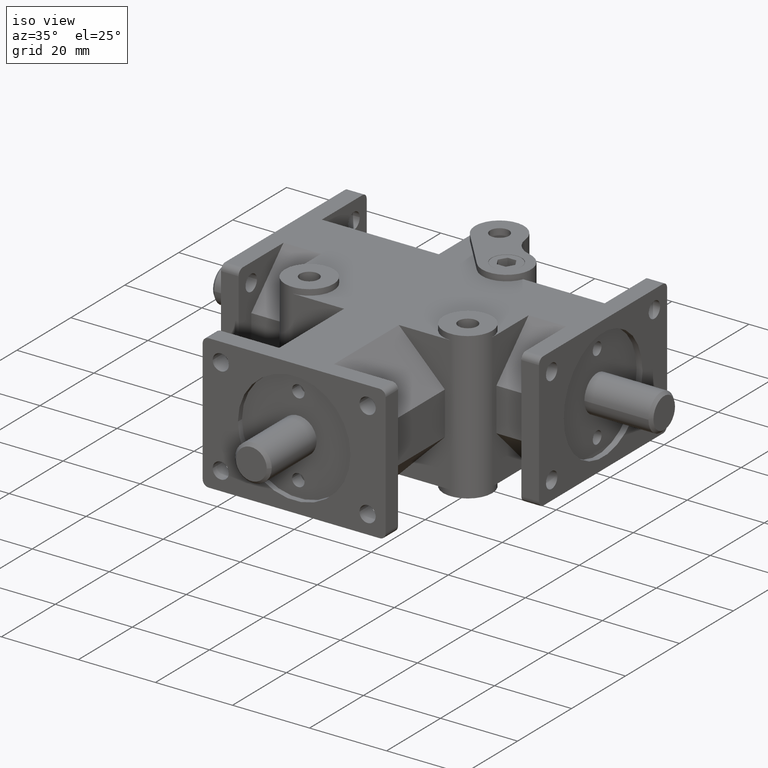
[diagram: clean part render]
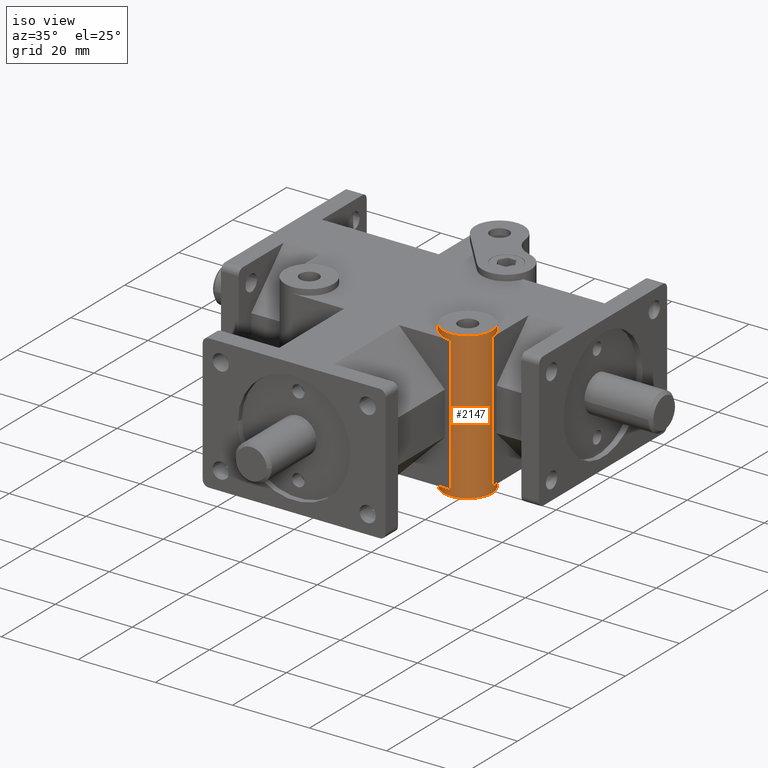
[diagram: same view with one face highlighted and labeled with its STEP entity id]
A machine part, iso view. The second image highlights one B-rep face of the part: STEP entity #2147.
In plain terms, the highlighted cylindrical surface (bore or boss wall) has radius 6.35 mm, axis along (0, 0, 1).
Its self-contained STEP definition (entity closure, byte-faithful):
#209=FACE_OUTER_BOUND('',#359,.T.);
#359=EDGE_LOOP('',(#1815,#1816,#1817,#1818,#1819,#1820,#1821,#1822,#1823,
#1824,#1825,#1826));
#473=CIRCLE('',#2297,0.25);
#474=CIRCLE('',#2298,0.25);
#481=CIRCLE('',#2307,0.25);
#482=CIRCLE('',#2308,0.25);
#503=CIRCLE('',#2368,0.25);
#504=CIRCLE('',#2369,0.25);
#679=LINE('',#3580,#874);
#680=LINE('',#3584,#875);
#681=LINE('',#3586,#876);
#682=LINE('',#3588,#877);
#874=VECTOR('',#2915,1.);
#875=VECTOR('',#2920,0.25);
#876=VECTOR('',#2921,0.25);
#877=VECTOR('',#2924,1.);
#1008=VERTEX_POINT('',#3330);
#1009=VERTEX_POINT('',#3332);
#1010=VERTEX_POINT('',#3334);
#1037=VERTEX_POINT('',#3403);
#1038=VERTEX_POINT('',#3405);
#1039=VERTEX_POINT('',#3407);
#1088=VERTEX_POINT('',#3582);
#1089=VERTEX_POINT('',#3585);
#1228=EDGE_CURVE('',#1008,#1009,#473,.T.);
#1229=EDGE_CURVE('',#1009,#1010,#474,.T.);
#1270=EDGE_CURVE('',#1037,#1038,#481,.T.);
#1271=EDGE_CURVE('',#1038,#1039,#482,.T.);
#1357=EDGE_CURVE('',#1039,#1008,#679,.T.);
#1358=EDGE_CURVE('',#1088,#1088,#503,.T.);
#1359=EDGE_CURVE('',#1088,#1009,#680,.T.);
#1360=EDGE_CURVE('',#1038,#1089,#681,.T.);
#1361=EDGE_CURVE('',#1089,#1089,#504,.T.);
#1362=EDGE_CURVE('',#1037,#1010,#682,.T.);
#1815=ORIENTED_EDGE('',*,*,#1358,.T.);
#1816=ORIENTED_EDGE('',*,*,#1359,.T.);
#1817=ORIENTED_EDGE('',*,*,#1228,.F.);
#1818=ORIENTED_EDGE('',*,*,#1357,.F.);
#1819=ORIENTED_EDGE('',*,*,#1271,.F.);
#1820=ORIENTED_EDGE('',*,*,#1360,.T.);
#1821=ORIENTED_EDGE('',*,*,#1361,.T.);
#1822=ORIENTED_EDGE('',*,*,#1360,.F.);
#1823=ORIENTED_EDGE('',*,*,#1270,.F.);
#1824=ORIENTED_EDGE('',*,*,#1362,.T.);
#1825=ORIENTED_EDGE('',*,*,#1229,.F.);
#1826=ORIENTED_EDGE('',*,*,#1359,.F.);
#2056=CYLINDRICAL_SURFACE('',#2367,0.25);
#2147=ADVANCED_FACE('',(#209),#2056,.T.);
#2297=AXIS2_PLACEMENT_3D('',#3333,#2676,#2677);
#2298=AXIS2_PLACEMENT_3D('',#3335,#2678,#2679);
#2307=AXIS2_PLACEMENT_3D('',#3406,#2730,#2731);
#2308=AXIS2_PLACEMENT_3D('',#3408,#2732,#2733);
#2367=AXIS2_PLACEMENT_3D('',#3581,#2916,#2917);
#2368=AXIS2_PLACEMENT_3D('',#3583,#2918,#2919);
#2369=AXIS2_PLACEMENT_3D('',#3587,#2922,#2923);
#2676=DIRECTION('center_axis',(0.,0.,-1.));
#2677=DIRECTION('ref_axis',(1.,0.,0.));
#2678=DIRECTION('center_axis',(0.,0.,-1.));
#2679=DIRECTION('ref_axis',(1.,0.,0.));
#2730=DIRECTION('center_axis',(0.,0.,1.));
#2731=DIRECTION('ref_axis',(1.,0.,0.));
#2732=DIRECTION('center_axis',(0.,0.,1.));
#2733=DIRECTION('ref_axis',(1.,0.,0.));
#2915=DIRECTION('',(0.,0.,1.));
#2916=DIRECTION('center_axis',(0.,0.,1.));
#2917=DIRECTION('ref_axis',(1.,0.,0.));
#2918=DIRECTION('center_axis',(0.,0.,-1.));
#2919=DIRECTION('ref_axis',(1.,0.,0.));
#2920=DIRECTION('',(0.,0.,-1.));
#2921=DIRECTION('',(0.,0.,-1.));
#2922=DIRECTION('center_axis',(0.,0.,1.));
#2923=DIRECTION('ref_axis',(1.,0.,0.));
#2924=DIRECTION('',(0.,0.,1.));
#3330=CARTESIAN_POINT('',(0.809999999999999,1.1275,0.69));
#3332=CARTESIAN_POINT('',(0.56,1.3775,0.69));
#3333=CARTESIAN_POINT('Origin',(0.81,1.3775,0.69));
#3334=CARTESIAN_POINT('',(1.06,1.3775,0.69));
#3335=CARTESIAN_POINT('Origin',(0.81,1.3775,0.69));
#3403=CARTESIAN_POINT('',(1.06,1.3775,-0.69));
#3405=CARTESIAN_POINT('',(0.56,1.3775,-0.69));
#3406=CARTESIAN_POINT('Origin',(0.81,1.3775,-0.69));
#3407=CARTESIAN_POINT('',(0.809999999999999,1.1275,-0.69));
#3408=CARTESIAN_POINT('Origin',(0.81,1.3775,-0.69));
#3580=CARTESIAN_POINT('',(0.809999999999999,1.1275,0.));
#3581=CARTESIAN_POINT('Origin',(0.81,1.3775,0.));
#3582=CARTESIAN_POINT('',(0.56,1.3775,0.75));
#3583=CARTESIAN_POINT('Origin',(0.81,1.3775,0.75));
#3584=CARTESIAN_POINT('',(0.56,1.3775,0.));
#3585=CARTESIAN_POINT('',(0.56,1.3775,-0.75));
#3586=CARTESIAN_POINT('',(0.56,1.3775,0.));
#3587=CARTESIAN_POINT('Origin',(0.81,1.3775,-0.75));
#3588=CARTESIAN_POINT('',(1.06,1.3775,0.));